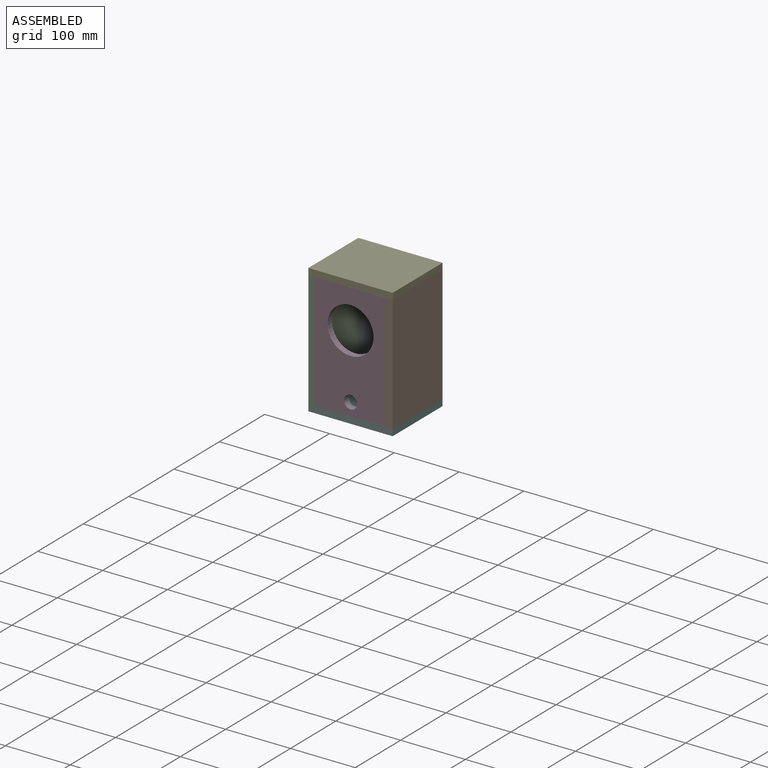
[diagram: assembled view]
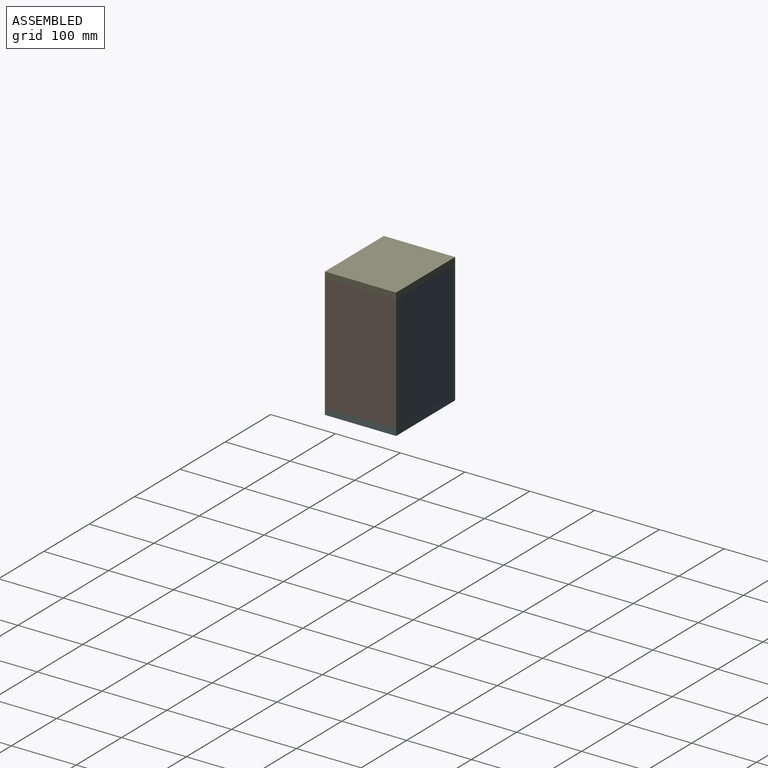
[diagram: assembled view, second angle]
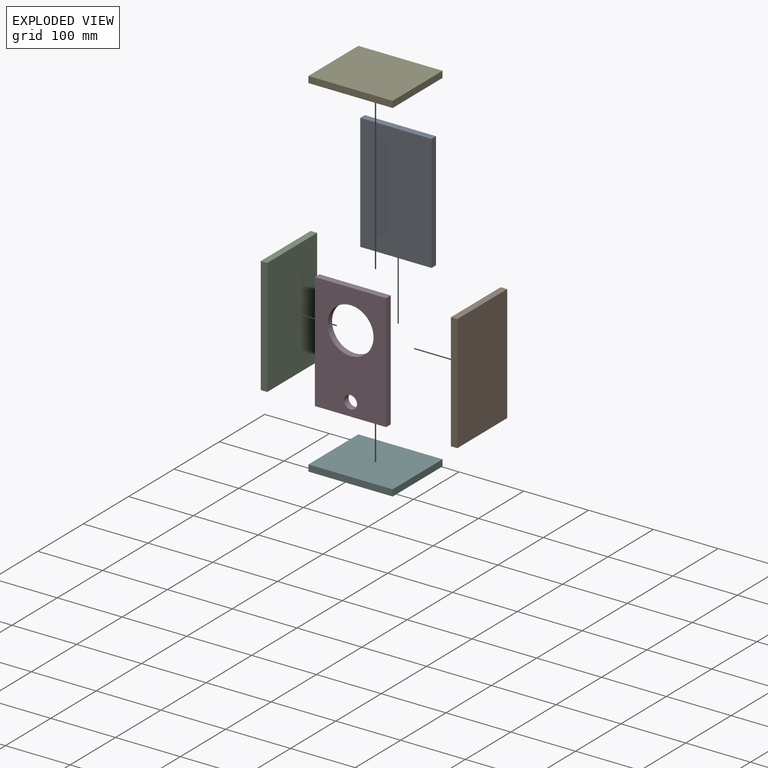
[diagram: exploded view]
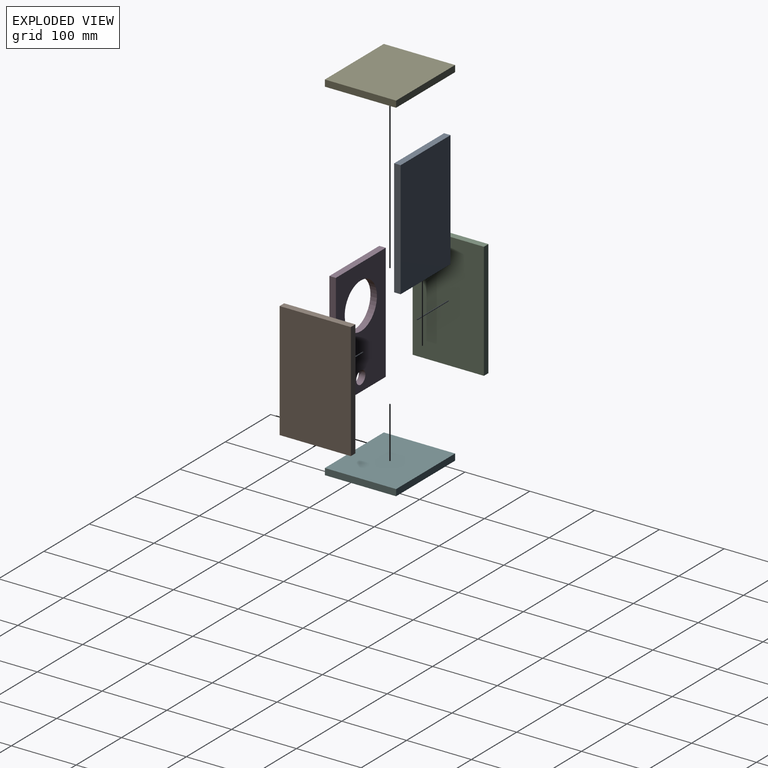
[diagram: exploded view, second angle]
ASSEMBLY  parts=6 mates=5
PART A: 6 faces, bbox 10x110x180 mm
  f0: plane 180x10mm, normal (0,-1,0), area 1800mm2, adj f1,f3,f4,f5
  f1: plane 110x10mm, normal (0,0,-1), area 1100mm2, adj f0,f2,f4,f5
  f2: plane 180x10mm, normal (0,1,0), area 1800mm2, adj f1,f3,f4,f5
  f3: plane 110x10mm, normal (0,0,1), area 1100mm2, adj f0,f2,f4,f5
  f4: plane 180x110mm, normal (1,0,0), area 19800mm2, adj f0,f1,f2,f3
  f5: plane 180x110mm, normal (-1,0,0), area 19800mm2, adj f0,f1,f2,f3
PART B: same geometry as A
PART C: same geometry as A
PART D: 8 faces, bbox 110x10x180 mm
  f0: plane 180x10mm, normal (-1,0,0), area 1800mm2, adj f1,f4,f6,f7
  f1: plane 110x10mm, normal (0,0,-1), area 1100mm2, adj f0,f2,f6,f7
  f2: plane 180x10mm, normal (1,0,0), area 1800mm2, adj f1,f4,f6,f7
  f3: cylinder r=35.5mm len=71mm, axis (0,-1,0), area 2230.5mm2, adj f6,f7
  f4: plane 110x10mm, normal (0,0,1), area 1100mm2, adj f0,f2,f6,f7
  f5: cylinder r=10mm len=20mm, axis (0,-1,0), area 628.3mm2, adj f6,f7
  f6: plane 180x110mm, normal (0,1,0), area 15526.6mm2, adj f0,f1,f2,f3,f4,f5
  f7: plane 180x110mm, normal (0,-1,0), area 15526.6mm2, adj f0,f1,f2,f3,f4,f5
PART E: 6 faces, bbox 130x110x10 mm
  f0: plane 110x10mm, normal (-1,0,0), area 1100mm2, adj f1,f3,f4,f5
  f1: plane 130x10mm, normal (0,-1,0), area 1300mm2, adj f0,f2,f4,f5
  f2: plane 110x10mm, normal (1,0,0), area 1100mm2, adj f1,f3,f4,f5
  f3: plane 130x10mm, normal (0,1,0), area 1300mm2, adj f0,f2,f4,f5
  f4: plane 130x110mm, normal (0,0,-1), area 14300mm2, adj f0,f1,f2,f3
  f5: plane 130x110mm, normal (0,0,1), area 14300mm2, adj f0,f1,f2,f3
PART F: same geometry as E
PLACE A rot(axis=(0,0,-1),90deg) t=(37.05,153.82,-73.45)mm
PLACE B t=(147.05,43.82,-73.45)mm
PLACE C t=(27.05,43.82,-73.45)mm
PLACE D t=(37.05,43.82,-73.45)mm
PLACE E t=(27.05,43.82,116.55)mm
PLACE F t=(27.05,43.82,-73.45)mm
MATE fastened E.f4 <-> C.f3  axis (0,0,1) through (27.05,43.82,106.55)mm
MATE fastened D.f1 <-> B.f1  axis (0,0,1) through (147.05,43.82,-73.45)mm
MATE fastened F.f5 <-> B.f1  axis (0,0,1) through (157.05,43.82,-73.45)mm
MATE fastened D.f1 <-> C.f1  axis (0,0,1) through (37.05,43.82,-73.45)mm
MATE fastened A.f3 <-> B.f3  axis (0,0,1) through (147.05,153.82,106.55)mm
